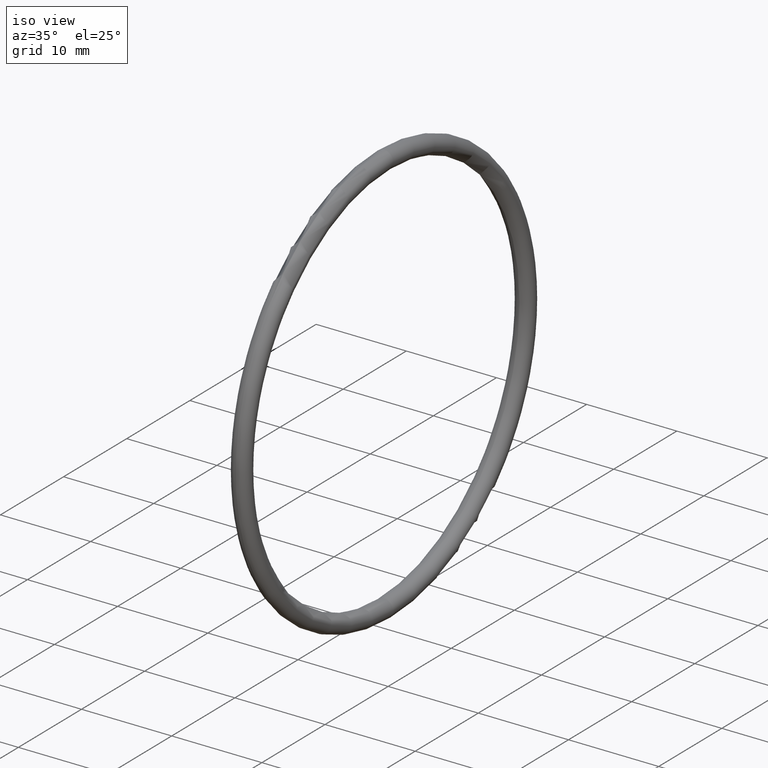
[diagram: clean part render]
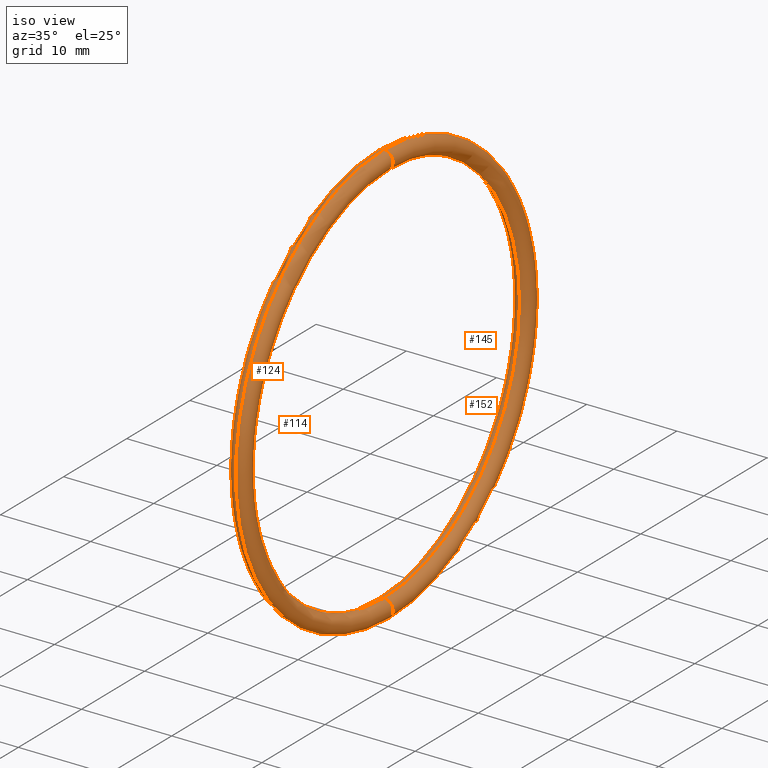
[diagram: same view with one multi-face feature highlighted, each face labeled with its STEP entity id]
A machine part, iso view. The highlighted faces form ONE feature: a constant-radius fillet chain: 4 tangent blend faces with common blend radius 1.016 mm. The faces share edges in the B-rep.
Their STEP definitions:
[1] entity #145 (Torus):
#24 = CIRCLE ( 'NONE', #87, 0.03999999999999998000 ) ;
#84 = DIRECTION ( 'NONE',  ( 0.0000000000000000000, 0.0000000000000000000, -1.000000000000000000 ) ) ;
#85 = DIRECTION ( 'NONE',  ( 0.0000000000000000000, -1.000000000000000000, 0.0000000000000000000 ) ) ;
#86 = CARTESIAN_POINT ( 'NONE',  ( 0.1000000000000001200, 0.0000000000000000000, 0.8850000000000000100 ) ) ;
#87 = AXIS2_PLACEMENT_3D ( 'NONE', #86, #85, #84 ) ;
#109 = CARTESIAN_POINT ( 'NONE',  ( 0.1000000000000001200, 0.0000000000000000000, 0.8449999999999999700 ) ) ;
#113 = EDGE_LOOP ( 'NONE', ( #143, #154, #142, #153 ) ) ;
#125 = AXIS2_PLACEMENT_3D ( 'NONE', #127, #128, #132 ) ;
#127 = CARTESIAN_POINT ( 'NONE',  ( 0.1000000000000001200, 0.0000000000000000000, 0.0000000000000000000 ) ) ;
#128 = DIRECTION ( 'NONE',  ( -1.000000000000000000, -0.0000000000000000000, -0.0000000000000000000 ) ) ;
#129 = DIRECTION ( 'NONE',  ( -1.000000000000000000, -0.0000000000000000000, -0.0000000000000000000 ) ) ;
#130 = AXIS2_PLACEMENT_3D ( 'NONE', #134, #129, #131 ) ;
#131 = DIRECTION ( 'NONE',  ( 0.0000000000000000000, 0.0000000000000000000, 1.000000000000000000 ) ) ;
#132 = DIRECTION ( 'NONE',  ( 0.0000000000000000000, 0.0000000000000000000, 1.000000000000000000 ) ) ;
#134 = CARTESIAN_POINT ( 'NONE',  ( 0.1000000000000001200, 0.0000000000000000000, 0.0000000000000000000 ) ) ;
#136 = EDGE_CURVE ( 'NONE', #148, #140, #176, .T. ) ;
#140 = VERTEX_POINT ( 'NONE', #171 ) ;
#142 = ORIENTED_EDGE ( 'NONE', *, *, #144, .T. ) ;
#143 = ORIENTED_EDGE ( 'NONE', *, *, #136, .F. ) ;
#144 = EDGE_CURVE ( 'NONE', #150, #146, #170, .T. ) ;
#145 = ADVANCED_FACE ( 'NONE', ( #185 ), #184, .T. ) ;
#146 = VERTEX_POINT ( 'NONE', #186 ) ;
#147 = EDGE_CURVE ( 'NONE', #146, #140, #196, .T. ) ;
#148 = VERTEX_POINT ( 'NONE', #191 ) ;
#150 = VERTEX_POINT ( 'NONE', #109 ) ;
#153 = ORIENTED_EDGE ( 'NONE', *, *, #147, .T. ) ;
#154 = ORIENTED_EDGE ( 'NONE', *, *, #155, .F. ) ;
#155 = EDGE_CURVE ( 'NONE', #150, #148, #24, .T. ) ;
#170 = CIRCLE ( 'NONE', #125, 0.8449999999999999700 ) ;
#171 = CARTESIAN_POINT ( 'NONE',  ( 0.1000000000000001200, 1.132798289211301800E-016, -0.9249999999999999300 ) ) ;
#172 = DIRECTION ( 'NONE',  ( 0.0000000000000000000, 0.0000000000000000000, 1.000000000000000000 ) ) ;
#173 = DIRECTION ( 'NONE',  ( -1.000000000000000000, -0.0000000000000000000, -0.0000000000000000000 ) ) ;
#174 = CARTESIAN_POINT ( 'NONE',  ( 0.1000000000000001200, 0.0000000000000000000, 0.0000000000000000000 ) ) ;
#175 = AXIS2_PLACEMENT_3D ( 'NONE', #174, #173, #172 ) ;
#176 = CIRCLE ( 'NONE', #175, 0.9249999999999999300 ) ;
#184 = TOROIDAL_SURFACE ( 'NONE', #130, 0.8850000000000000100, 0.03999999999999997300 ) ;
#185 = FACE_OUTER_BOUND ( 'NONE', #113, .T. ) ;
#186 = CARTESIAN_POINT ( 'NONE',  ( 0.1000000000000001200, 1.034826545279513500E-016, -0.8449999999999999700 ) ) ;
#191 = CARTESIAN_POINT ( 'NONE',  ( 0.1000000000000001200, 0.0000000000000000000, 0.9249999999999999300 ) ) ;
#192 = DIRECTION ( 'NONE',  ( 0.0000000000000000000, -1.224646799147354900E-016, 1.000000000000000000 ) ) ;
#193 = DIRECTION ( 'NONE',  ( -0.0000000000000000000, 1.000000000000000000, 1.224646799147353200E-016 ) ) ;
#194 = CARTESIAN_POINT ( 'NONE',  ( 0.1000000000000001200, 1.083812417245407700E-016, -0.8850000000000000100 ) ) ;
#195 = AXIS2_PLACEMENT_3D ( 'NONE', #194, #193, #192 ) ;
#196 = CIRCLE ( 'NONE', #195, 0.03999999999999998000 ) ;
[2] entity #114 (Torus):
#20 = DIRECTION ( 'NONE',  ( 0.0000000000000000000, 0.0000000000000000000, 1.000000000000000000 ) ) ;
#21 = AXIS2_PLACEMENT_3D ( 'NONE', #22, #88, #20 ) ;
#22 = CARTESIAN_POINT ( 'NONE',  ( 0.1000000000000001200, 0.0000000000000000000, 0.0000000000000000000 ) ) ;
#23 = CIRCLE ( 'NONE', #21, 0.9249999999999999300 ) ;
#24 = CIRCLE ( 'NONE', #87, 0.03999999999999998000 ) ;
#84 = DIRECTION ( 'NONE',  ( 0.0000000000000000000, 0.0000000000000000000, -1.000000000000000000 ) ) ;
#85 = DIRECTION ( 'NONE',  ( 0.0000000000000000000, -1.000000000000000000, 0.0000000000000000000 ) ) ;
#86 = CARTESIAN_POINT ( 'NONE',  ( 0.1000000000000001200, 0.0000000000000000000, 0.8850000000000000100 ) ) ;
#87 = AXIS2_PLACEMENT_3D ( 'NONE', #86, #85, #84 ) ;
#88 = DIRECTION ( 'NONE',  ( -1.000000000000000000, -0.0000000000000000000, -0.0000000000000000000 ) ) ;
#109 = CARTESIAN_POINT ( 'NONE',  ( 0.1000000000000001200, 0.0000000000000000000, 0.8449999999999999700 ) ) ;
#114 = ADVANCED_FACE ( 'NONE', ( #160 ), #163, .T. ) ;
#115 = EDGE_LOOP ( 'NONE', ( #116, #117, #118, #119 ) ) ;
#116 = ORIENTED_EDGE ( 'NONE', *, *, #157, .F. ) ;
#117 = ORIENTED_EDGE ( 'NONE', *, *, #147, .F. ) ;
#118 = ORIENTED_EDGE ( 'NONE', *, *, #149, .T. ) ;
#119 = ORIENTED_EDGE ( 'NONE', *, *, #155, .T. ) ;
#133 = DIRECTION ( 'NONE',  ( 0.0000000000000000000, 0.0000000000000000000, 1.000000000000000000 ) ) ;
#140 = VERTEX_POINT ( 'NONE', #171 ) ;
#146 = VERTEX_POINT ( 'NONE', #186 ) ;
#147 = EDGE_CURVE ( 'NONE', #146, #140, #196, .T. ) ;
#148 = VERTEX_POINT ( 'NONE', #191 ) ;
#149 = EDGE_CURVE ( 'NONE', #146, #150, #190, .T. ) ;
#150 = VERTEX_POINT ( 'NONE', #109 ) ;
#155 = EDGE_CURVE ( 'NONE', #150, #148, #24, .T. ) ;
#157 = EDGE_CURVE ( 'NONE', #140, #148, #23, .T. ) ;
#160 = FACE_OUTER_BOUND ( 'NONE', #115, .T. ) ;
#161 = CARTESIAN_POINT ( 'NONE',  ( 0.1000000000000001200, 0.0000000000000000000, 0.0000000000000000000 ) ) ;
#162 = AXIS2_PLACEMENT_3D ( 'NONE', #161, #165, #164 ) ;
#163 = TOROIDAL_SURFACE ( 'NONE', #162, 0.8850000000000000100, 0.03999999999999997300 ) ;
#164 = DIRECTION ( 'NONE',  ( 0.0000000000000000000, 0.0000000000000000000, 1.000000000000000000 ) ) ;
#165 = DIRECTION ( 'NONE',  ( -1.000000000000000000, -0.0000000000000000000, -0.0000000000000000000 ) ) ;
#171 = CARTESIAN_POINT ( 'NONE',  ( 0.1000000000000001200, 1.132798289211301800E-016, -0.9249999999999999300 ) ) ;
#186 = CARTESIAN_POINT ( 'NONE',  ( 0.1000000000000001200, 1.034826545279513500E-016, -0.8449999999999999700 ) ) ;
#187 = DIRECTION ( 'NONE',  ( -1.000000000000000000, -0.0000000000000000000, -0.0000000000000000000 ) ) ;
#188 = CARTESIAN_POINT ( 'NONE',  ( 0.1000000000000001200, 0.0000000000000000000, 0.0000000000000000000 ) ) ;
#189 = AXIS2_PLACEMENT_3D ( 'NONE', #188, #187, #133 ) ;
#190 = CIRCLE ( 'NONE', #189, 0.8449999999999999700 ) ;
#191 = CARTESIAN_POINT ( 'NONE',  ( 0.1000000000000001200, 0.0000000000000000000, 0.9249999999999999300 ) ) ;
#192 = DIRECTION ( 'NONE',  ( 0.0000000000000000000, -1.224646799147354900E-016, 1.000000000000000000 ) ) ;
#193 = DIRECTION ( 'NONE',  ( -0.0000000000000000000, 1.000000000000000000, 1.224646799147353200E-016 ) ) ;
#194 = CARTESIAN_POINT ( 'NONE',  ( 0.1000000000000001200, 1.083812417245407700E-016, -0.8850000000000000100 ) ) ;
#195 = AXIS2_PLACEMENT_3D ( 'NONE', #194, #193, #192 ) ;
#196 = CIRCLE ( 'NONE', #195, 0.03999999999999998000 ) ;
[3] entity #124 (Torus):
#14 = DIRECTION ( 'NONE',  ( 0.0000000000000000000, 0.0000000000000000000, -1.000000000000000000 ) ) ;
#15 = DIRECTION ( 'NONE',  ( 0.0000000000000000000, -1.000000000000000000, 0.0000000000000000000 ) ) ;
#16 = AXIS2_PLACEMENT_3D ( 'NONE', #17, #15, #14 ) ;
#17 = CARTESIAN_POINT ( 'NONE',  ( 0.1000000000000001200, 0.0000000000000000000, 0.8850000000000000100 ) ) ;
#18 = CIRCLE ( 'NONE', #16, 0.03999999999999998000 ) ;
#20 = DIRECTION ( 'NONE',  ( 0.0000000000000000000, 0.0000000000000000000, 1.000000000000000000 ) ) ;
#21 = AXIS2_PLACEMENT_3D ( 'NONE', #22, #88, #20 ) ;
#22 = CARTESIAN_POINT ( 'NONE',  ( 0.1000000000000001200, 0.0000000000000000000, 0.0000000000000000000 ) ) ;
#23 = CIRCLE ( 'NONE', #21, 0.9249999999999999300 ) ;
#88 = DIRECTION ( 'NONE',  ( -1.000000000000000000, -0.0000000000000000000, -0.0000000000000000000 ) ) ;
#109 = CARTESIAN_POINT ( 'NONE',  ( 0.1000000000000001200, 0.0000000000000000000, 0.8449999999999999700 ) ) ;
#121 = ORIENTED_EDGE ( 'NONE', *, *, #122, .F. ) ;
#122 = EDGE_CURVE ( 'NONE', #140, #146, #180, .T. ) ;
#123 = EDGE_LOOP ( 'NONE', ( #121, #137, #151, #135 ) ) ;
#124 = ADVANCED_FACE ( 'NONE', ( #166 ), #183, .T. ) ;
#133 = DIRECTION ( 'NONE',  ( 0.0000000000000000000, 0.0000000000000000000, 1.000000000000000000 ) ) ;
#135 = ORIENTED_EDGE ( 'NONE', *, *, #149, .F. ) ;
#137 = ORIENTED_EDGE ( 'NONE', *, *, #157, .T. ) ;
#140 = VERTEX_POINT ( 'NONE', #171 ) ;
#146 = VERTEX_POINT ( 'NONE', #186 ) ;
#148 = VERTEX_POINT ( 'NONE', #191 ) ;
#149 = EDGE_CURVE ( 'NONE', #146, #150, #190, .T. ) ;
#150 = VERTEX_POINT ( 'NONE', #109 ) ;
#151 = ORIENTED_EDGE ( 'NONE', *, *, #158, .T. ) ;
#157 = EDGE_CURVE ( 'NONE', #140, #148, #23, .T. ) ;
#158 = EDGE_CURVE ( 'NONE', #148, #150, #18, .T. ) ;
#166 = FACE_OUTER_BOUND ( 'NONE', #123, .T. ) ;
#167 = DIRECTION ( 'NONE',  ( -1.000000000000000000, -0.0000000000000000000, -0.0000000000000000000 ) ) ;
#168 = DIRECTION ( 'NONE',  ( 0.0000000000000000000, -1.224646799147354900E-016, 1.000000000000000000 ) ) ;
#169 = CARTESIAN_POINT ( 'NONE',  ( 0.1000000000000001200, 0.0000000000000000000, 0.0000000000000000000 ) ) ;
#171 = CARTESIAN_POINT ( 'NONE',  ( 0.1000000000000001200, 1.132798289211301800E-016, -0.9249999999999999300 ) ) ;
#177 = DIRECTION ( 'NONE',  ( -0.0000000000000000000, 1.000000000000000000, 1.224646799147353200E-016 ) ) ;
#178 = CARTESIAN_POINT ( 'NONE',  ( 0.1000000000000001200, 1.083812417245407700E-016, -0.8850000000000000100 ) ) ;
#179 = AXIS2_PLACEMENT_3D ( 'NONE', #178, #177, #168 ) ;
#180 = CIRCLE ( 'NONE', #179, 0.03999999999999998000 ) ;
#181 = DIRECTION ( 'NONE',  ( 0.0000000000000000000, 0.0000000000000000000, 1.000000000000000000 ) ) ;
#182 = AXIS2_PLACEMENT_3D ( 'NONE', #169, #167, #181 ) ;
#183 = TOROIDAL_SURFACE ( 'NONE', #182, 0.8850000000000000100, 0.03999999999999997300 ) ;
#186 = CARTESIAN_POINT ( 'NONE',  ( 0.1000000000000001200, 1.034826545279513500E-016, -0.8449999999999999700 ) ) ;
#187 = DIRECTION ( 'NONE',  ( -1.000000000000000000, -0.0000000000000000000, -0.0000000000000000000 ) ) ;
#188 = CARTESIAN_POINT ( 'NONE',  ( 0.1000000000000001200, 0.0000000000000000000, 0.0000000000000000000 ) ) ;
#189 = AXIS2_PLACEMENT_3D ( 'NONE', #188, #187, #133 ) ;
#190 = CIRCLE ( 'NONE', #189, 0.8449999999999999700 ) ;
#191 = CARTESIAN_POINT ( 'NONE',  ( 0.1000000000000001200, 0.0000000000000000000, 0.9249999999999999300 ) ) ;
[4] entity #152 (Torus):
#14 = DIRECTION ( 'NONE',  ( 0.0000000000000000000, 0.0000000000000000000, -1.000000000000000000 ) ) ;
#15 = DIRECTION ( 'NONE',  ( 0.0000000000000000000, -1.000000000000000000, 0.0000000000000000000 ) ) ;
#16 = AXIS2_PLACEMENT_3D ( 'NONE', #17, #15, #14 ) ;
#17 = CARTESIAN_POINT ( 'NONE',  ( 0.1000000000000001200, 0.0000000000000000000, 0.8850000000000000100 ) ) ;
#18 = CIRCLE ( 'NONE', #16, 0.03999999999999998000 ) ;
#25 = DIRECTION ( 'NONE',  ( 0.0000000000000000000, 0.0000000000000000000, 1.000000000000000000 ) ) ;
#107 = DIRECTION ( 'NONE',  ( -1.000000000000000000, -0.0000000000000000000, -0.0000000000000000000 ) ) ;
#108 = AXIS2_PLACEMENT_3D ( 'NONE', #111, #107, #25 ) ;
#109 = CARTESIAN_POINT ( 'NONE',  ( 0.1000000000000001200, 0.0000000000000000000, 0.8449999999999999700 ) ) ;
#110 = FACE_OUTER_BOUND ( 'NONE', #138, .T. ) ;
#111 = CARTESIAN_POINT ( 'NONE',  ( 0.1000000000000001200, 0.0000000000000000000, 0.0000000000000000000 ) ) ;
#112 = TOROIDAL_SURFACE ( 'NONE', #108, 0.8850000000000000100, 0.03999999999999997300 ) ;
#122 = EDGE_CURVE ( 'NONE', #140, #146, #180, .T. ) ;
#125 = AXIS2_PLACEMENT_3D ( 'NONE', #127, #128, #132 ) ;
#127 = CARTESIAN_POINT ( 'NONE',  ( 0.1000000000000001200, 0.0000000000000000000, 0.0000000000000000000 ) ) ;
#128 = DIRECTION ( 'NONE',  ( -1.000000000000000000, -0.0000000000000000000, -0.0000000000000000000 ) ) ;
#132 = DIRECTION ( 'NONE',  ( 0.0000000000000000000, 0.0000000000000000000, 1.000000000000000000 ) ) ;
#136 = EDGE_CURVE ( 'NONE', #148, #140, #176, .T. ) ;
#138 = EDGE_LOOP ( 'NONE', ( #159, #156, #141, #139 ) ) ;
#139 = ORIENTED_EDGE ( 'NONE', *, *, #144, .F. ) ;
#140 = VERTEX_POINT ( 'NONE', #171 ) ;
#141 = ORIENTED_EDGE ( 'NONE', *, *, #122, .T. ) ;
#144 = EDGE_CURVE ( 'NONE', #150, #146, #170, .T. ) ;
#146 = VERTEX_POINT ( 'NONE', #186 ) ;
#148 = VERTEX_POINT ( 'NONE', #191 ) ;
#150 = VERTEX_POINT ( 'NONE', #109 ) ;
#152 = ADVANCED_FACE ( 'NONE', ( #110 ), #112, .T. ) ;
#156 = ORIENTED_EDGE ( 'NONE', *, *, #136, .T. ) ;
#158 = EDGE_CURVE ( 'NONE', #148, #150, #18, .T. ) ;
#159 = ORIENTED_EDGE ( 'NONE', *, *, #158, .F. ) ;
#168 = DIRECTION ( 'NONE',  ( 0.0000000000000000000, -1.224646799147354900E-016, 1.000000000000000000 ) ) ;
#170 = CIRCLE ( 'NONE', #125, 0.8449999999999999700 ) ;
#171 = CARTESIAN_POINT ( 'NONE',  ( 0.1000000000000001200, 1.132798289211301800E-016, -0.9249999999999999300 ) ) ;
#172 = DIRECTION ( 'NONE',  ( 0.0000000000000000000, 0.0000000000000000000, 1.000000000000000000 ) ) ;
#173 = DIRECTION ( 'NONE',  ( -1.000000000000000000, -0.0000000000000000000, -0.0000000000000000000 ) ) ;
#174 = CARTESIAN_POINT ( 'NONE',  ( 0.1000000000000001200, 0.0000000000000000000, 0.0000000000000000000 ) ) ;
#175 = AXIS2_PLACEMENT_3D ( 'NONE', #174, #173, #172 ) ;
#176 = CIRCLE ( 'NONE', #175, 0.9249999999999999300 ) ;
#177 = DIRECTION ( 'NONE',  ( -0.0000000000000000000, 1.000000000000000000, 1.224646799147353200E-016 ) ) ;
#178 = CARTESIAN_POINT ( 'NONE',  ( 0.1000000000000001200, 1.083812417245407700E-016, -0.8850000000000000100 ) ) ;
#179 = AXIS2_PLACEMENT_3D ( 'NONE', #178, #177, #168 ) ;
#180 = CIRCLE ( 'NONE', #179, 0.03999999999999998000 ) ;
#186 = CARTESIAN_POINT ( 'NONE',  ( 0.1000000000000001200, 1.034826545279513500E-016, -0.8449999999999999700 ) ) ;
#191 = CARTESIAN_POINT ( 'NONE',  ( 0.1000000000000001200, 0.0000000000000000000, 0.9249999999999999300 ) ) ;